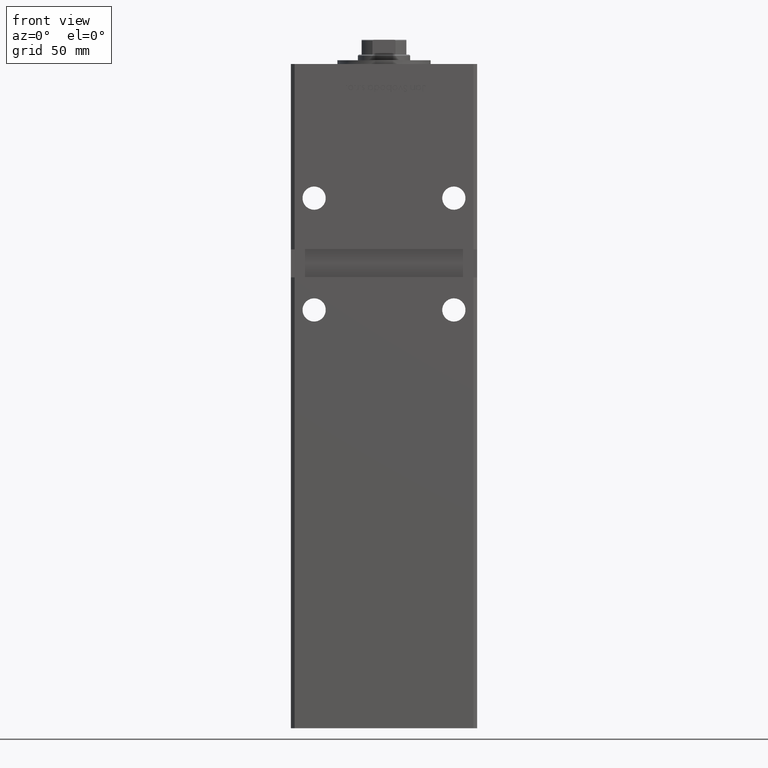
[diagram: clean part render]
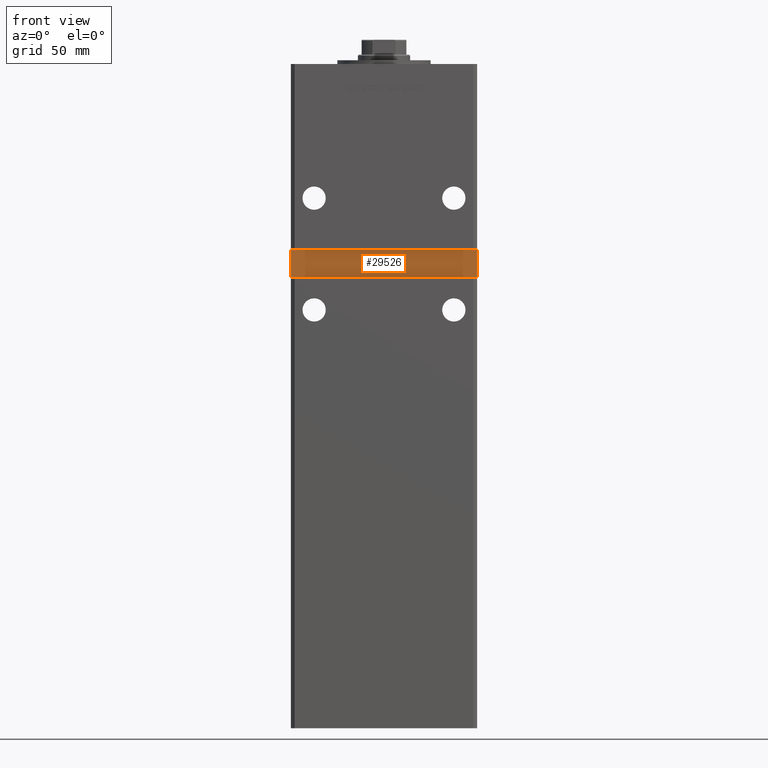
[diagram: same view with one face highlighted and labeled with its STEP entity id]
A machine part, front view. The second image highlights one B-rep face of the part: STEP entity #29526.
In plain terms, the highlighted planar face has unit normal (0, -1, 0).
Its self-contained STEP definition (entity closure, byte-faithful):
#2663 = LINE ( 'NONE', #2925, #9307 ) ;
#2925 = CARTESIAN_POINT ( 'NONE',  ( 50.00000000000000000, -38.50000000000000000, 238.0000000000000284 ) ) ;
#3190 = DIRECTION ( 'NONE',  ( 4.625929269271481969E-16, -0.000000000000000000, 1.000000000000000000 ) ) ;
#3476 = EDGE_CURVE ( 'NONE', #16842, #13975, #5952, .T. ) ;
#3587 = CARTESIAN_POINT ( 'NONE',  ( 0.000000000000000000, -38.50000000000000000, 0.000000000000000000 ) ) ;
#5420 = CARTESIAN_POINT ( 'NONE',  ( -49.99999999999998579, -38.50000000000000000, 238.0000000000000284 ) ) ;
#5952 = LINE ( 'NONE', #5420, #27312 ) ;
#6654 = LINE ( 'NONE', #39480, #18836 ) ;
#7357 = DIRECTION ( 'NONE',  ( 0.000000000000000000, -1.000000000000000000, 0.000000000000000000 ) ) ;
#7525 = CARTESIAN_POINT ( 'NONE',  ( -49.99999999999998579, -38.50000000000000000, 223.0000000000000000 ) ) ;
#7896 = PLANE ( 'NONE',  #49008 ) ;
#9307 = VECTOR ( 'NONE', #3190, 1000.000000000000000 ) ;
#9696 = ORIENTED_EDGE ( 'NONE', *, *, #24433, .T. ) ;
#10157 = CARTESIAN_POINT ( 'NONE',  ( -49.99999999999998579, -38.50000000000000000, 223.0000000000000000 ) ) ;
#11828 = LINE ( 'NONE', #7525, #22582 ) ;
#13975 = VERTEX_POINT ( 'NONE', #20164 ) ;
#14259 = ORIENTED_EDGE ( 'NONE', *, *, #3476, .T. ) ;
#16842 = VERTEX_POINT ( 'NONE', #39695 ) ;
#18499 = DIRECTION ( 'NONE',  ( 0.000000000000000000, 0.000000000000000000, -1.000000000000000000 ) ) ;
#18836 = VECTOR ( 'NONE', #18499, 1000.000000000000000 ) ;
#20164 = CARTESIAN_POINT ( 'NONE',  ( -49.99999999999998579, -38.50000000000000000, 238.0000000000000284 ) ) ;
#20481 = ORIENTED_EDGE ( 'NONE', *, *, #40672, .T. ) ;
#20852 = ORIENTED_EDGE ( 'NONE', *, *, #21974, .T. ) ;
#21830 = DIRECTION ( 'NONE',  ( -1.000000000000000000, -0.000000000000000000, -0.000000000000000000 ) ) ;
#21974 = EDGE_CURVE ( 'NONE', #29166, #16842, #2663, .T. ) ;
#22454 = EDGE_LOOP ( 'NONE', ( #20852, #14259, #9696, #20481 ) ) ;
#22582 = VECTOR ( 'NONE', #36557, 1000.000000000000000 ) ;
#24311 = FACE_OUTER_BOUND ( 'NONE', #22454, .T. ) ;
#24433 = EDGE_CURVE ( 'NONE', #13975, #31380, #6654, .T. ) ;
#27312 = VECTOR ( 'NONE', #21830, 1000.000000000000000 ) ;
#29166 = VERTEX_POINT ( 'NONE', #33800 ) ;
#29526 = ADVANCED_FACE ( 'NONE', ( #24311 ), #7896, .T. ) ;
#31380 = VERTEX_POINT ( 'NONE', #10157 ) ;
#33800 = CARTESIAN_POINT ( 'NONE',  ( 49.99999999999998579, -38.49999999999999289, 223.0000000000000000 ) ) ;
#36557 = DIRECTION ( 'NONE',  ( 1.000000000000000000, 0.000000000000000000, 0.000000000000000000 ) ) ;
#39480 = CARTESIAN_POINT ( 'NONE',  ( -49.99999999999998579, -38.50000000000000000, 238.0000000000000284 ) ) ;
#39695 = CARTESIAN_POINT ( 'NONE',  ( 50.00000000000000000, -38.50000000000000000, 238.0000000000000284 ) ) ;
#40672 = EDGE_CURVE ( 'NONE', #31380, #29166, #11828, .T. ) ;
#49008 = AXIS2_PLACEMENT_3D ( 'NONE', #3587, #7357, #52505 ) ;
#52505 = DIRECTION ( 'NONE',  ( 0.000000000000000000, 0.000000000000000000, -1.000000000000000000 ) ) ;